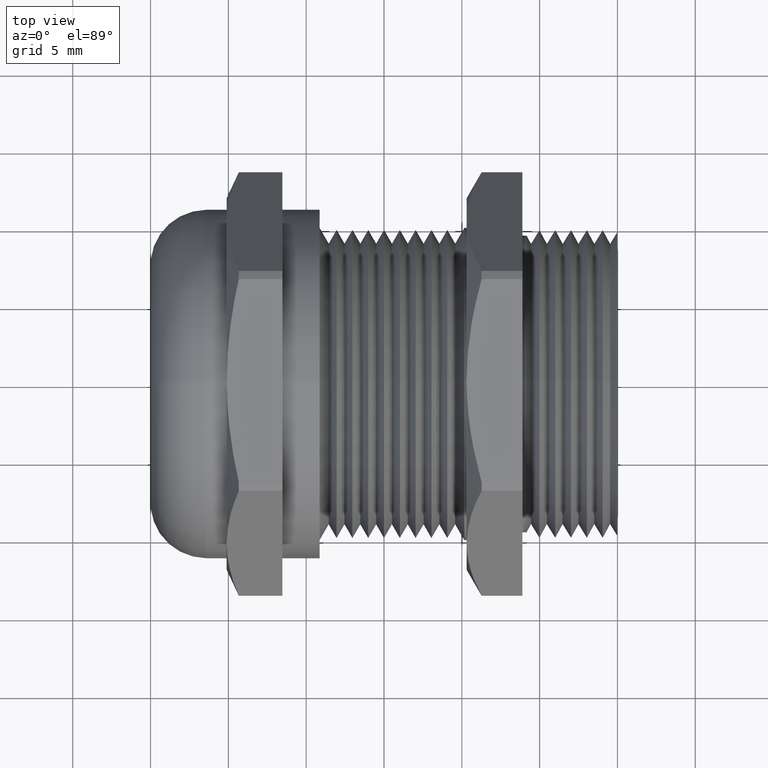
[diagram: clean part render]
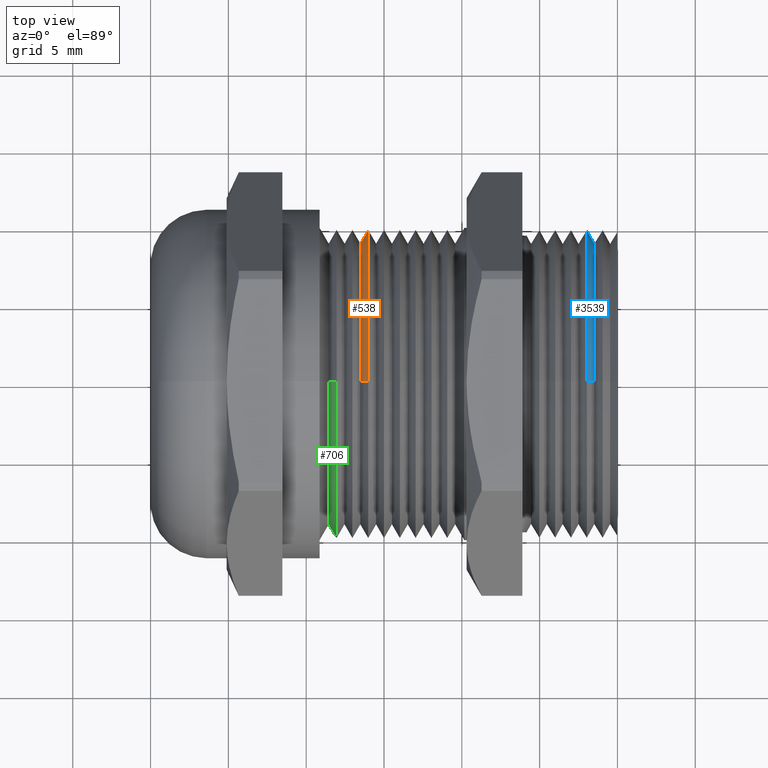
[diagram: same view with three faces highlighted in distinct colors, each labeled with its STEP entity id]
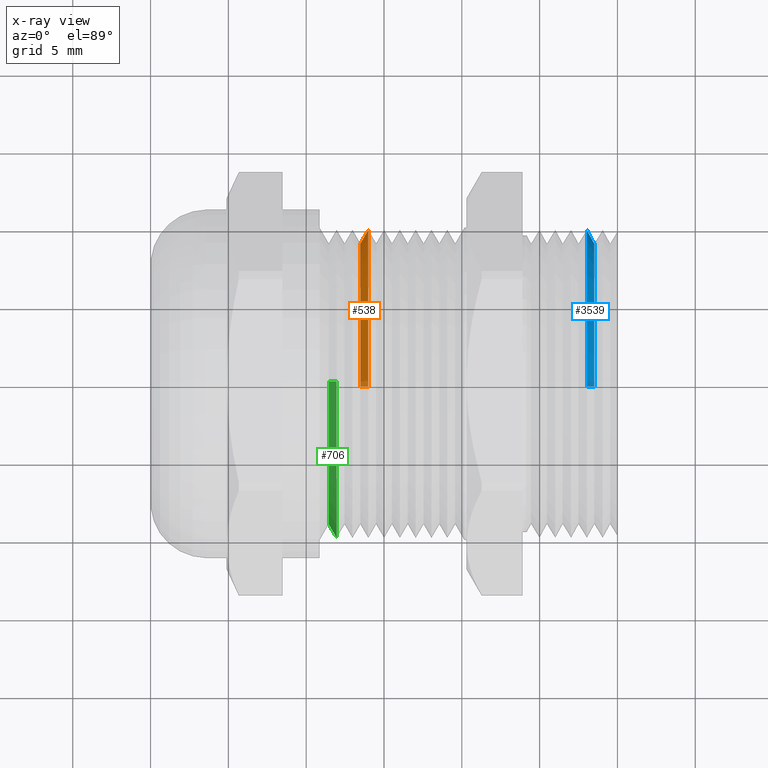
[diagram: x-ray of the same camera — body ghosted, the three highlighted faces saturated]
A machine part, top view with three faces highlighted in distinct colors.
The next image is the same camera in x-ray (body ghosted, the three faces saturated) — at least one of them is partly hidden behind the body in this view.
Their STEP definitions:

[orange] entity #538 — the highlighted conical surface has half-angle 60 deg.
#338 = VERTEX_POINT ( 'NONE', #1557 ) ;
#369 = EDGE_CURVE ( 'NONE', #370, #338, #1622, .T. ) ;
#370 = VERTEX_POINT ( 'NONE', #1617 ) ;
#402 = EDGE_CURVE ( 'NONE', #403, #404, #1741, .T. ) ;
#403 = VERTEX_POINT ( 'NONE', #1736 ) ;
#404 = VERTEX_POINT ( 'NONE', #1735 ) ;
#462 = ORIENTED_EDGE ( 'NONE', *, *, #463, .F. ) ;
#463 = EDGE_CURVE ( 'NONE', #404, #338, #1824, .T. ) ;
#464 = ORIENTED_EDGE ( 'NONE', *, *, #531, .T. ) ;
#529 = EDGE_LOOP ( 'NONE', ( #530, #464, #532, #462 ) ) ;
#530 = ORIENTED_EDGE ( 'NONE', *, *, #402, .F. ) ;
#531 = EDGE_CURVE ( 'NONE', #403, #370, #1904, .T. ) ;
#532 = ORIENTED_EDGE ( 'NONE', *, *, #369, .T. ) ;
#538 = ADVANCED_FACE ( 'NONE', ( #1962 ), #1960, .T. ) ;
#1557 = CARTESIAN_POINT ( 'NONE',  ( -0.03990598923241493000, 0.0000000000000000000, -0.3896410161513778100 ) ) ;
#1617 = CARTESIAN_POINT ( 'NONE',  ( -0.03990598923241493000, 4.771726232463069400E-017, 0.3896410161513778100 ) ) ;
#1618 = DIRECTION ( 'NONE',  ( 0.0000000000000000000, 0.0000000000000000000, 1.000000000000000000 ) ) ;
#1619 = DIRECTION ( 'NONE',  ( -1.000000000000000000, 0.0000000000000000000, 0.0000000000000000000 ) ) ;
#1620 = CARTESIAN_POINT ( 'NONE',  ( -0.03990598923241493000, 0.0000000000000000000, 0.0000000000000000000 ) ) ;
#1621 = AXIS2_PLACEMENT_3D ( 'NONE', #1620, #1619, #1618 ) ;
#1622 = CIRCLE ( 'NONE', #1621, 0.3896410161513777500 ) ;
#1735 = CARTESIAN_POINT ( 'NONE',  ( -0.05990598923241478200, 0.0000000000000000000, -0.3550000000000000400 ) ) ;
#1736 = CARTESIAN_POINT ( 'NONE',  ( -0.05990598923241478200, 4.559611184718086500E-017, 0.3550000000000000400 ) ) ;
#1737 = DIRECTION ( 'NONE',  ( 0.0000000000000000000, 0.0000000000000000000, 1.000000000000000000 ) ) ;
#1738 = DIRECTION ( 'NONE',  ( -1.000000000000000000, 0.0000000000000000000, 0.0000000000000000000 ) ) ;
#1739 = CARTESIAN_POINT ( 'NONE',  ( -0.05990598923241478200, 0.0000000000000000000, 0.0000000000000000000 ) ) ;
#1740 = AXIS2_PLACEMENT_3D ( 'NONE', #1739, #1738, #1737 ) ;
#1741 = CIRCLE ( 'NONE', #1740, 0.3550000000000000400 ) ;
#1821 = DIRECTION ( 'NONE',  ( 0.4999999999999951200, 0.0000000000000000000, -0.8660254037844414800 ) ) ;
#1822 = VECTOR ( 'NONE', #1821, 39.37007874015748100 ) ;
#1823 = CARTESIAN_POINT ( 'NONE',  ( -0.05990598923241478200, 0.0000000000000000000, -0.3550000000000000400 ) ) ;
#1824 = LINE ( 'NONE', #1823, #1822 ) ;
#1901 = DIRECTION ( 'NONE',  ( 0.4999999999999951200, 1.060575238724910200E-016, 0.8660254037844414800 ) ) ;
#1902 = VECTOR ( 'NONE', #1901, 39.37007874015748100 ) ;
#1903 = CARTESIAN_POINT ( 'NONE',  ( -0.05990598923241478200, 4.347496136973104100E-017, 0.3550000000000000400 ) ) ;
#1904 = LINE ( 'NONE', #1903, #1902 ) ;
#1956 = DIRECTION ( 'NONE',  ( 0.0000000000000000000, 0.0000000000000000000, -1.000000000000000000 ) ) ;
#1957 = DIRECTION ( 'NONE',  ( 1.000000000000000000, 0.0000000000000000000, 0.0000000000000000000 ) ) ;
#1958 = CARTESIAN_POINT ( 'NONE',  ( -0.05990598923241478200, 0.0000000000000000000, 0.0000000000000000000 ) ) ;
#1959 = AXIS2_PLACEMENT_3D ( 'NONE', #1958, #1957, #1956 ) ;
#1960 = CONICAL_SURFACE ( 'NONE', #1959, 0.3550000000000000400, 1.047197551196603400 ) ;
#1962 = FACE_OUTER_BOUND ( 'NONE', #529, .T. ) ;

[blue] entity #3539 — the highlighted conical surface has half-angle 61.5 deg.
#30 = EDGE_CURVE ( 'NONE', #3522, #3509, #1191, .T. ) ;
#1188 = DIRECTION ( 'NONE',  ( -0.4771587602596011900, 0.0000000000000000000, 0.8788171126619692700 ) ) ;
#1189 = VECTOR ( 'NONE', #1188, 39.37007874015748100 ) ;
#1190 = CARTESIAN_POINT ( 'NONE',  ( 0.5099999999999997900, 0.0000000000000000000, 0.3950000000000000200 ) ) ;
#1191 = LINE ( 'NONE', #1190, #1189 ) ;
#2249 = ORIENTED_EDGE ( 'NONE', *, *, #30, .F. ) ;
#2971 = EDGE_LOOP ( 'NONE', ( #3538, #3634, #3633, #2249 ) ) ;
#3122 = CARTESIAN_POINT ( 'NONE',  ( 0.5132476662315719200, 0.0000000000000000000, -0.3890185428871363900 ) ) ;
#3128 = CARTESIAN_POINT ( 'NONE',  ( 0.5132476662315719200, 4.764103133556988900E-017, 0.3890185428871363900 ) ) ;
#3129 = CARTESIAN_POINT ( 'NONE',  ( 0.5320390190945651900, 0.0000000000000000000, -0.3544091762748932100 ) ) ;
#3135 = DIRECTION ( 'NONE',  ( -0.4771587602596011900, 1.076240564057399600E-016, -0.8788171126619692700 ) ) ;
#3136 = VECTOR ( 'NONE', #3135, 39.37007874015748100 ) ;
#3137 = CARTESIAN_POINT ( 'NONE',  ( 0.5099999999999997900, 4.837354856632045600E-017, -0.3950000000000000200 ) ) ;
#3138 = LINE ( 'NONE', #3137, #3136 ) ;
#3169 = CARTESIAN_POINT ( 'NONE',  ( 0.5320390190945651900, 4.552181883345984800E-017, 0.3544091762748932100 ) ) ;
#3198 = DIRECTION ( 'NONE',  ( 0.0000000000000000000, 0.0000000000000000000, 1.000000000000000000 ) ) ;
#3199 = DIRECTION ( 'NONE',  ( -1.000000000000000000, 0.0000000000000000000, 0.0000000000000000000 ) ) ;
#3200 = CARTESIAN_POINT ( 'NONE',  ( 0.5099999999999997900, 0.0000000000000000000, 9.945048967182041100E-018 ) ) ;
#3201 = AXIS2_PLACEMENT_3D ( 'NONE', #3200, #3199, #3198 ) ;
#3203 = CONICAL_SURFACE ( 'NONE', #3201, 0.3950000000000000200, 1.073377489976520900 ) ;
#3204 = FACE_OUTER_BOUND ( 'NONE', #2971, .T. ) ;
#3341 = DIRECTION ( 'NONE',  ( 0.0000000000000000000, 0.0000000000000000000, 1.000000000000000000 ) ) ;
#3342 = DIRECTION ( 'NONE',  ( -1.000000000000000000, 0.0000000000000000000, 0.0000000000000000000 ) ) ;
#3343 = CARTESIAN_POINT ( 'NONE',  ( 0.5132476662315719200, 0.0000000000000000000, 7.458786725386531200E-018 ) ) ;
#3344 = AXIS2_PLACEMENT_3D ( 'NONE', #3343, #3342, #3341 ) ;
#3345 = CIRCLE ( 'NONE', #3344, 0.3890185428871363900 ) ;
#3382 = DIRECTION ( 'NONE',  ( 0.0000000000000000000, 0.0000000000000000000, 1.000000000000000000 ) ) ;
#3383 = DIRECTION ( 'NONE',  ( -1.000000000000000000, 0.0000000000000000000, 0.0000000000000000000 ) ) ;
#3384 = CARTESIAN_POINT ( 'NONE',  ( 0.5320390190945651900, 0.0000000000000000000, 9.945048967182041100E-018 ) ) ;
#3385 = AXIS2_PLACEMENT_3D ( 'NONE', #3384, #3383, #3382 ) ;
#3386 = CIRCLE ( 'NONE', #3385, 0.3544091762748932100 ) ;
#3503 = EDGE_CURVE ( 'NONE', #3508, #3511, #3138, .T. ) ;
#3508 = VERTEX_POINT ( 'NONE', #3129 ) ;
#3509 = VERTEX_POINT ( 'NONE', #3128 ) ;
#3511 = VERTEX_POINT ( 'NONE', #3122 ) ;
#3522 = VERTEX_POINT ( 'NONE', #3169 ) ;
#3538 = ORIENTED_EDGE ( 'NONE', *, *, #3631, .T. ) ;
#3539 = ADVANCED_FACE ( 'NONE', ( #3204 ), #3203, .T. ) ;
#3625 = EDGE_CURVE ( 'NONE', #3509, #3511, #3345, .T. ) ;
#3631 = EDGE_CURVE ( 'NONE', #3522, #3508, #3386, .T. ) ;
#3633 = ORIENTED_EDGE ( 'NONE', *, *, #3625, .F. ) ;
#3634 = ORIENTED_EDGE ( 'NONE', *, *, #3503, .T. ) ;

[green] entity #706 — the highlighted conical surface has half-angle 60 deg.
#374 = VERTEX_POINT ( 'NONE', #1671 ) ;
#388 = VERTEX_POINT ( 'NONE', #1708 ) ;
#413 = VERTEX_POINT ( 'NONE', #1715 ) ;
#422 = EDGE_CURVE ( 'NONE', #388, #413, #1770, .T. ) ;
#455 = VERTEX_POINT ( 'NONE', #1834 ) ;
#491 = EDGE_CURVE ( 'NONE', #455, #374, #1897, .T. ) ;
#706 = ADVANCED_FACE ( 'NONE', ( #2273 ), #2272, .T. ) ;
#707 = EDGE_LOOP ( 'NONE', ( #735, #736, #738, #739 ) ) ;
#735 = ORIENTED_EDGE ( 'NONE', *, *, #491, .F. ) ;
#736 = ORIENTED_EDGE ( 'NONE', *, *, #737, .F. ) ;
#737 = EDGE_CURVE ( 'NONE', #388, #455, #2343, .T. ) ;
#738 = ORIENTED_EDGE ( 'NONE', *, *, #422, .T. ) ;
#739 = ORIENTED_EDGE ( 'NONE', *, *, #740, .T. ) ;
#740 = EDGE_CURVE ( 'NONE', #413, #374, #2334, .T. ) ;
#1671 = CARTESIAN_POINT ( 'NONE',  ( -0.1199059892324149700, 4.771726232463068800E-017, 0.3896410161513777500 ) ) ;
#1708 = CARTESIAN_POINT ( 'NONE',  ( -0.1399059892324147900, 0.0000000000000000000, -0.3550000000000000400 ) ) ;
#1715 = CARTESIAN_POINT ( 'NONE',  ( -0.1199059892324149700, 0.0000000000000000000, -0.3896410161513777500 ) ) ;
#1767 = DIRECTION ( 'NONE',  ( 0.4999999999999951200, 0.0000000000000000000, -0.8660254037844414800 ) ) ;
#1768 = VECTOR ( 'NONE', #1767, 39.37007874015748100 ) ;
#1769 = CARTESIAN_POINT ( 'NONE',  ( -0.1399059892324147900, 0.0000000000000000000, -0.3550000000000000400 ) ) ;
#1770 = LINE ( 'NONE', #1769, #1768 ) ;
#1834 = CARTESIAN_POINT ( 'NONE',  ( -0.1399059892324147900, 4.559611184718086500E-017, 0.3550000000000000400 ) ) ;
#1894 = DIRECTION ( 'NONE',  ( 0.4999999999999951200, 1.060575238724910200E-016, 0.8660254037844414800 ) ) ;
#1895 = VECTOR ( 'NONE', #1894, 39.37007874015748100 ) ;
#1896 = CARTESIAN_POINT ( 'NONE',  ( -0.1399059892324147900, 4.347496136973104100E-017, 0.3550000000000000400 ) ) ;
#1897 = LINE ( 'NONE', #1896, #1895 ) ;
#2267 = DIRECTION ( 'NONE',  ( 0.0000000000000000000, 0.0000000000000000000, -1.000000000000000000 ) ) ;
#2268 = DIRECTION ( 'NONE',  ( 1.000000000000000000, 0.0000000000000000000, 0.0000000000000000000 ) ) ;
#2269 = CARTESIAN_POINT ( 'NONE',  ( -0.1399059892324147900, 0.0000000000000000000, 0.0000000000000000000 ) ) ;
#2270 = AXIS2_PLACEMENT_3D ( 'NONE', #2269, #2268, #2267 ) ;
#2272 = CONICAL_SURFACE ( 'NONE', #2270, 0.3550000000000000400, 1.047197551196603400 ) ;
#2273 = FACE_OUTER_BOUND ( 'NONE', #707, .T. ) ;
#2330 = DIRECTION ( 'NONE',  ( 0.0000000000000000000, 0.0000000000000000000, 1.000000000000000000 ) ) ;
#2331 = DIRECTION ( 'NONE',  ( -1.000000000000000000, 0.0000000000000000000, 0.0000000000000000000 ) ) ;
#2332 = CARTESIAN_POINT ( 'NONE',  ( -0.1199059892324149700, 0.0000000000000000000, 0.0000000000000000000 ) ) ;
#2333 = AXIS2_PLACEMENT_3D ( 'NONE', #2332, #2331, #2330 ) ;
#2334 = CIRCLE ( 'NONE', #2333, 0.3896410161513777500 ) ;
#2335 = DIRECTION ( 'NONE',  ( 0.0000000000000000000, 0.0000000000000000000, 1.000000000000000000 ) ) ;
#2336 = DIRECTION ( 'NONE',  ( -1.000000000000000000, 0.0000000000000000000, 0.0000000000000000000 ) ) ;
#2337 = CARTESIAN_POINT ( 'NONE',  ( -0.1399059892324147900, 0.0000000000000000000, 0.0000000000000000000 ) ) ;
#2338 = AXIS2_PLACEMENT_3D ( 'NONE', #2337, #2336, #2335 ) ;
#2343 = CIRCLE ( 'NONE', #2338, 0.3550000000000000400 ) ;